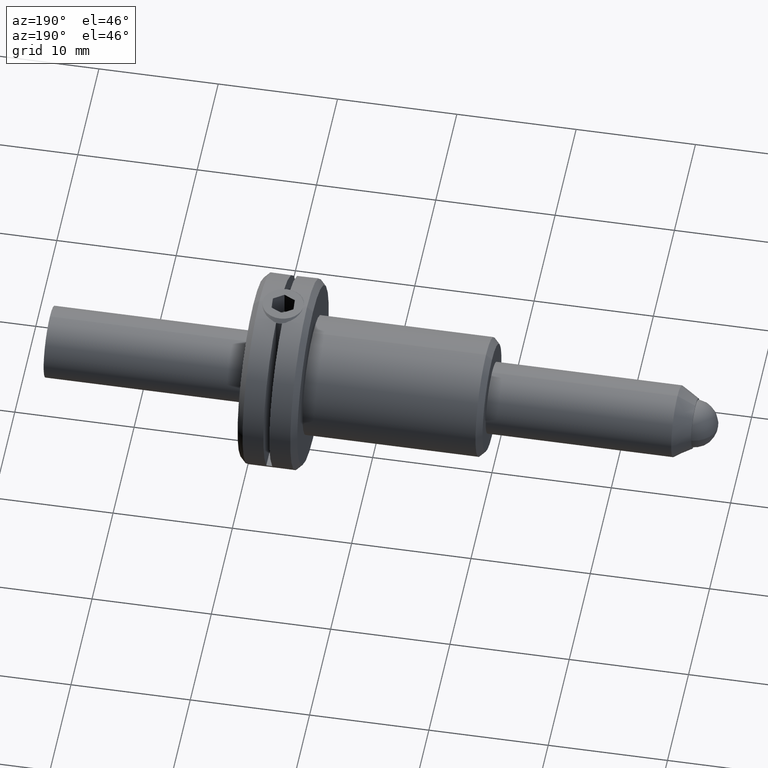
[diagram: clean part render]
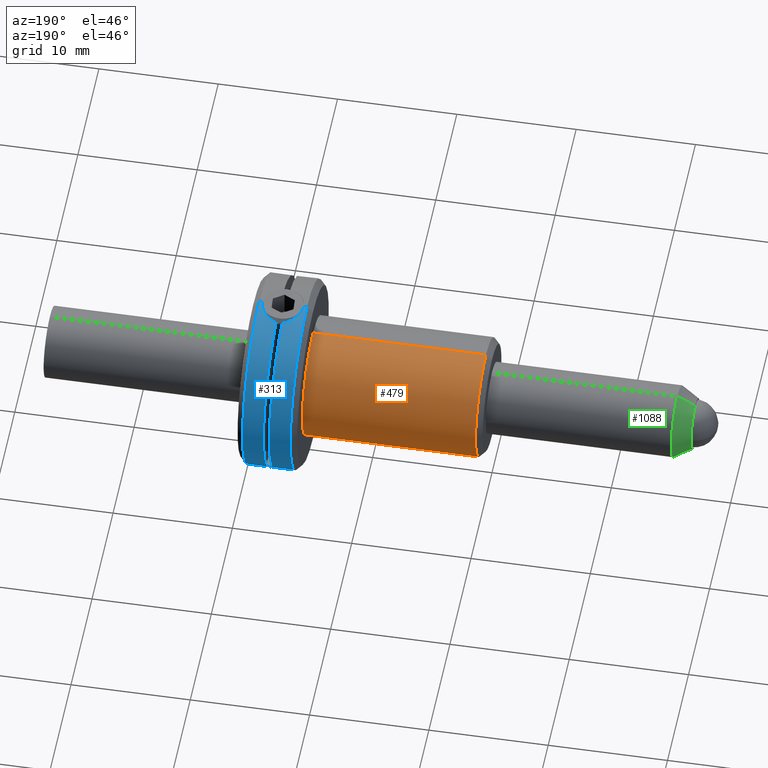
[diagram: same view with three faces highlighted in distinct colors, each labeled with its STEP entity id]
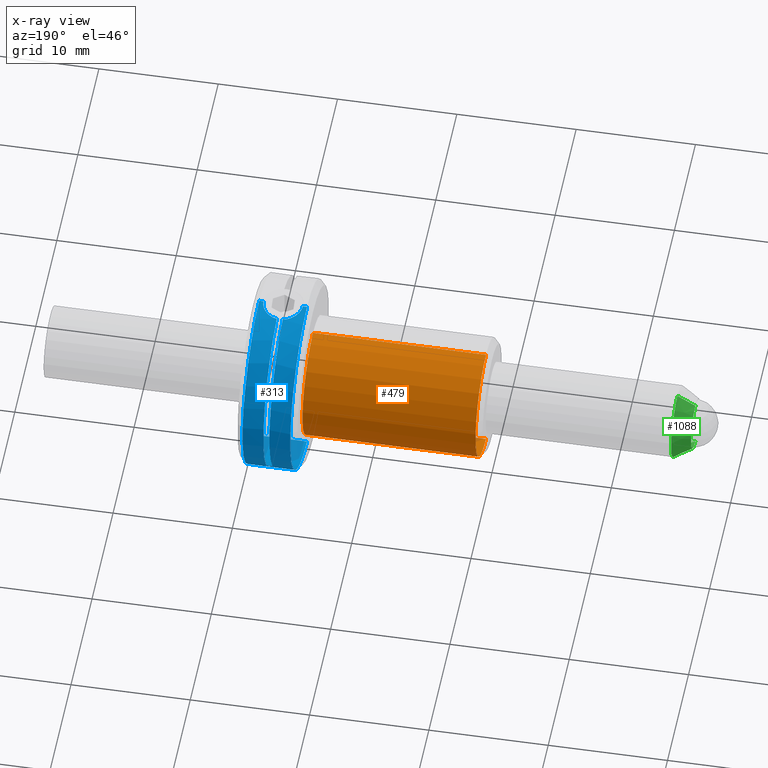
[diagram: x-ray of the same camera — body ghosted, the three highlighted faces saturated]
A machine part, auxiliary view with three faces highlighted in distinct colors.
The next image is the same camera in x-ray (body ghosted, the three faces saturated) — at least one of them is partly hidden behind the body in this view.
Their STEP definitions:

[orange] entity #479 — the highlighted cylindrical surface (partial cylindrical patch) has radius 5 mm, axis along (-1, 0, 0).
#32 = VECTOR ( 'NONE', #92, 1000.000000000000000 ) ;
#81 = CARTESIAN_POINT ( 'NONE',  ( -27.35644179797201048, 0.000000000000000000, -4.999999999999999112 ) ) ;
#92 = DIRECTION ( 'NONE',  ( -1.000000000000000000, 0.000000000000000000, 0.000000000000000000 ) ) ;
#97 = DIRECTION ( 'NONE',  ( 0.000000000000000000, 0.000000000000000000, -1.000000000000000000 ) ) ;
#174 = AXIS2_PLACEMENT_3D ( 'NONE', #1702, #811, #239 ) ;
#208 = CARTESIAN_POINT ( 'NONE',  ( -27.35644179797201048, 0.000000000000000000, 0.000000000000000000 ) ) ;
#237 = VECTOR ( 'NONE', #964, 1000.000000000000000 ) ;
#239 = DIRECTION ( 'NONE',  ( 0.000000000000000000, 0.000000000000000000, 1.000000000000000000 ) ) ;
#278 = ORIENTED_EDGE ( 'NONE', *, *, #1119, .T. ) ;
#284 = DIRECTION ( 'NONE',  ( -1.000000000000000000, 0.000000000000000000, 0.000000000000000000 ) ) ;
#300 = VERTEX_POINT ( 'NONE', #1191 ) ;
#359 = AXIS2_PLACEMENT_3D ( 'NONE', #208, #1420, #97 ) ;
#412 = ORIENTED_EDGE ( 'NONE', *, *, #863, .T. ) ;
#479 = ADVANCED_FACE ( 'NONE', ( #970 ), #1716, .T. ) ;
#603 = EDGE_LOOP ( 'NONE', ( #1023, #412, #278, #1477 ) ) ;
#609 = CARTESIAN_POINT ( 'NONE',  ( 5.000000000000004441, 0.000000000000000000, 0.000000000000000000 ) ) ;
#661 = CARTESIAN_POINT ( 'NONE',  ( -27.35644179797201048, -6.123233995736765296E-16, 4.999999999999999112 ) ) ;
#811 = DIRECTION ( 'NONE',  ( 1.000000000000000000, 0.000000000000000000, 0.000000000000000000 ) ) ;
#820 = LINE ( 'NONE', #661, #32 ) ;
#863 = EDGE_CURVE ( 'NONE', #1634, #300, #1539, .T. ) ;
#964 = DIRECTION ( 'NONE',  ( -1.000000000000000000, 0.000000000000000000, 0.000000000000000000 ) ) ;
#970 = FACE_OUTER_BOUND ( 'NONE', #603, .T. ) ;
#1023 = ORIENTED_EDGE ( 'NONE', *, *, #1882, .F. ) ;
#1084 = EDGE_CURVE ( 'NONE', #1207, #1460, #1500, .T. ) ;
#1112 = CARTESIAN_POINT ( 'NONE',  ( -9.499999999999998224, 0.000000000000000000, -4.999999999999999112 ) ) ;
#1119 = EDGE_CURVE ( 'NONE', #300, #1207, #1846, .T. ) ;
#1191 = CARTESIAN_POINT ( 'NONE',  ( 5.000000000000004441, 0.000000000000000000, -5.000000000000000000 ) ) ;
#1207 = VERTEX_POINT ( 'NONE', #1112 ) ;
#1288 = DIRECTION ( 'NONE',  ( 0.000000000000000000, 0.000000000000000000, -1.000000000000000000 ) ) ;
#1420 = DIRECTION ( 'NONE',  ( -1.000000000000000000, 0.000000000000000000, 0.000000000000000000 ) ) ;
#1460 = VERTEX_POINT ( 'NONE', #1891 ) ;
#1477 = ORIENTED_EDGE ( 'NONE', *, *, #1084, .T. ) ;
#1500 = CIRCLE ( 'NONE', #174, 4.999999999999999112 ) ;
#1539 = CIRCLE ( 'NONE', #1567, 5.000000000000000000 ) ;
#1567 = AXIS2_PLACEMENT_3D ( 'NONE', #609, #284, #1288 ) ;
#1634 = VERTEX_POINT ( 'NONE', #1802 ) ;
#1702 = CARTESIAN_POINT ( 'NONE',  ( -9.499999999999998224, 0.000000000000000000, 0.000000000000000000 ) ) ;
#1716 = CYLINDRICAL_SURFACE ( 'NONE', #359, 4.999999999999999112 ) ;
#1802 = CARTESIAN_POINT ( 'NONE',  ( 5.000000000000004441, -6.123233995736766282E-16, 5.000000000000000000 ) ) ;
#1846 = LINE ( 'NONE', #81, #237 ) ;
#1882 = EDGE_CURVE ( 'NONE', #1634, #1460, #820, .T. ) ;
#1891 = CARTESIAN_POINT ( 'NONE',  ( -9.499999999999998224, -6.123233995736765296E-16, 4.999999999999999112 ) ) ;

[blue] entity #313 — the highlighted cylindrical surface (partial cylindrical patch) has radius 8 mm, axis along (-1, 0, 0).
#48 = CARTESIAN_POINT ( 'NONE',  ( 6.311515751002518826, 1.148668007518377721, 7.917454812073199122 ) ) ;
#49 = CARTESIAN_POINT ( 'NONE',  ( 7.750000000000000000, 6.614378277661476346, -4.500000000000000888 ) ) ;
#56 = VERTEX_POINT ( 'NONE', #402 ) ;
#65 = CARTESIAN_POINT ( 'NONE',  ( 9.150000000000000355, -9.797174393178825657E-16, 8.000000000000000000 ) ) ;
#69 = DIRECTION ( 'NONE',  ( 1.000000000000000000, 0.000000000000000000, 0.000000000000000000 ) ) ;
#70 = CARTESIAN_POINT ( 'NONE',  ( 7.249999999999997335, 1.630950643030010472, 7.831985699680511281 ) ) ;
#103 = CARTESIAN_POINT ( 'NONE',  ( 8.386270206046193110, 1.395180310099567222, 7.877549552829115065 ) ) ;
#123 = CARTESIAN_POINT ( 'NONE',  ( 9.150000000000002132, 0.1975202131461036570, 8.000000000000000000 ) ) ;
#130 = DIRECTION ( 'NONE',  ( -1.084202172485504434E-16, 0.000000000000000000, 1.000000000000000000 ) ) ;
#148 = B_SPLINE_CURVE_WITH_KNOTS ( 'NONE', 3,
 ( #1499, #808, #1793, #176, #922, #1515, #636, #1365, #48, #1217, #1810, #1197, #452, #601, #442, #163 ),
 .UNSPECIFIED., .F., .F.,
 ( 4, 2, 2, 2, 2, 2, 2, 4 ),
 ( 0.002835874755387478210, 0.003127960128604552730, 0.003420045501821627251, 0.003712130875038701337, 0.004004216248255775858, 0.004296301621472850378, 0.004588386994689924898, 0.005172557741124073939 ),
 .UNSPECIFIED. ) ;
#159 = DIRECTION ( 'NONE',  ( -1.000000000000000000, -0.000000000000000000, 1.040834085586084257E-16 ) ) ;
#163 = CARTESIAN_POINT ( 'NONE',  ( 5.849999999999999645, -9.797177280130657527E-16, 8.000000000000000000 ) ) ;
#165 = DIRECTION ( 'NONE',  ( -1.000000000000000000, 0.000000000000000000, 0.000000000000000000 ) ) ;
#173 = ORIENTED_EDGE ( 'NONE', *, *, #351, .T. ) ;
#176 = CARTESIAN_POINT ( 'NONE',  ( 6.874302747824478921, 1.529863656619127044, 7.852423049668634469 ) ) ;
#178 = AXIS2_PLACEMENT_3D ( 'NONE', #1387, #69, #466 ) ;
#199 = VERTEX_POINT ( 'NONE', #1293 ) ;
#245 = CARTESIAN_POINT ( 'NONE',  ( 9.150000000000000355, -9.797174393178825657E-16, 8.000000000000000000 ) ) ;
#253 = CARTESIAN_POINT ( 'NONE',  ( 8.687748513388987348, 1.149467179595533795, 7.917341869961020961 ) ) ;
#274 = VERTEX_POINT ( 'NONE', #560 ) ;
#283 = ORIENTED_EDGE ( 'NONE', *, *, #1525, .T. ) ;
#287 = CARTESIAN_POINT ( 'NONE',  ( -27.35644179797201048, 0.000000000000000000, -8.000000000000000000 ) ) ;
#305 = EDGE_LOOP ( 'NONE', ( #1613, #283, #1483, #1169, #642, #541, #173, #629, #377, #1002 ) ) ;
#313 = ADVANCED_FACE ( 'NONE', ( #335 ), #1204, .T. ) ;
#328 = VECTOR ( 'NONE', #410, 1000.000000000000000 ) ;
#329 = AXIS2_PLACEMENT_3D ( 'NONE', #478, #159, #1080 ) ;
#335 = FACE_OUTER_BOUND ( 'NONE', #305, .T. ) ;
#351 = EDGE_CURVE ( 'NONE', #787, #1287, #1161, .T. ) ;
#377 = ORIENTED_EDGE ( 'NONE', *, *, #895, .T. ) ;
#395 = VERTEX_POINT ( 'NONE', #1349 ) ;
#402 = CARTESIAN_POINT ( 'NONE',  ( 5.500000000000005329, 0.000000000000000000, -8.000000000000000000 ) ) ;
#410 = DIRECTION ( 'NONE',  ( -1.000000000000000000, 0.000000000000000000, 0.000000000000000000 ) ) ;
#428 = DIRECTION ( 'NONE',  ( 1.000000000000000000, 0.000000000000000000, 1.040834085586084257E-16 ) ) ;
#437 = DIRECTION ( 'NONE',  ( 1.000000000000000000, -0.000000000000000000, -0.000000000000000000 ) ) ;
#442 = CARTESIAN_POINT ( 'NONE',  ( 5.850000000000000533, 0.1948791552277833183, 8.000000000000000000 ) ) ;
#452 = CARTESIAN_POINT ( 'NONE',  ( 5.986906842086524350, 0.6652157703864260974, 7.972819368972082543 ) ) ;
#466 = DIRECTION ( 'NONE',  ( 0.000000000000000000, 0.000000000000000000, 1.000000000000000000 ) ) ;
#478 = CARTESIAN_POINT ( 'NONE',  ( 7.249999999999999112, 0.000000000000000000, 0.000000000000000000 ) ) ;
#486 = CIRCLE ( 'NONE', #1289, 8.000000000000000000 ) ;
#496 = VERTEX_POINT ( 'NONE', #1544 ) ;
#513 = VECTOR ( 'NONE', #1619, 1000.000000000000000 ) ;
#541 = ORIENTED_EDGE ( 'NONE', *, *, #1722, .F. ) ;
#544 = CARTESIAN_POINT ( 'NONE',  ( 7.943019352007904210, 1.592390864367204451, 7.839982604953931400 ) ) ;
#560 = CARTESIAN_POINT ( 'NONE',  ( 7.750000000000000000, 1.630950643030008917, 7.831985699680509505 ) ) ;
#561 = CARTESIAN_POINT ( 'NONE',  ( -27.35644179797201048, -9.797174393178825657E-16, 8.000000000000000000 ) ) ;
#570 = LINE ( 'NONE', #561, #328 ) ;
#601 = CARTESIAN_POINT ( 'NONE',  ( 5.885381863884660447, 0.3916120239585191842, 7.992501665210952844 ) ) ;
#604 = LINE ( 'NONE', #1901, #830 ) ;
#629 = ORIENTED_EDGE ( 'NONE', *, *, #1571, .T. ) ;
#636 = CARTESIAN_POINT ( 'NONE',  ( 6.533099981453266203, 1.340543924859564751, 7.887129590209505992 ) ) ;
#642 = ORIENTED_EDGE ( 'NONE', *, *, #1049, .F. ) ;
#701 = CARTESIAN_POINT ( 'NONE',  ( 8.468055333128232220, 1.339692283324674271, 7.887273494992031786 ) ) ;
#714 = CARTESIAN_POINT ( 'NONE',  ( 8.878550300574779897, 0.9274612557324274364, 7.947460220116603580 ) ) ;
#715 = VERTEX_POINT ( 'NONE', #49 ) ;
#787 = VERTEX_POINT ( 'NONE', #70 ) ;
#791 = DIRECTION ( 'NONE',  ( 0.000000000000000000, 0.000000000000000000, -1.000000000000000000 ) ) ;
#808 = CARTESIAN_POINT ( 'NONE',  ( 7.153069607854820156, 1.616092683876030334, 7.835079755130237800 ) ) ;
#830 = VECTOR ( 'NONE', #437, 1000.000000000000000 ) ;
#840 = CARTESIAN_POINT ( 'NONE',  ( 9.115154137422800673, 0.3902963780664306381, 7.992604497324463431 ) ) ;
#848 = CARTESIAN_POINT ( 'NONE',  ( 7.750000000000000000, 1.630950643030008917, 7.831985699680509505 ) ) ;
#895 = EDGE_CURVE ( 'NONE', #715, #274, #1229, .T. ) ;
#907 = DIRECTION ( 'NONE',  ( -1.000000000000000000, 0.000000000000000000, 0.000000000000000000 ) ) ;
#922 = CARTESIAN_POINT ( 'NONE',  ( 6.783735348336710658, 1.489618741805397439, 7.860238702376334707 ) ) ;
#933 = LINE ( 'NONE', #1371, #1758 ) ;
#990 = CARTESIAN_POINT ( 'NONE',  ( 7.846547942710883738, 1.616151307574414497, 7.835067547196997495 ) ) ;
#1002 = ORIENTED_EDGE ( 'NONE', *, *, #1402, .F. ) ;
#1029 = CARTESIAN_POINT ( 'NONE',  ( 7.250000000000000888, 6.614378277661474570, -4.500000000000000888 ) ) ;
#1049 = EDGE_CURVE ( 'NONE', #395, #496, #933, .T. ) ;
#1061 = VERTEX_POINT ( 'NONE', #65 ) ;
#1080 = DIRECTION ( 'NONE',  ( -1.084202172485504434E-16, 0.000000000000000000, -1.000000000000000000 ) ) ;
#1161 = CIRCLE ( 'NONE', #329, 8.000000000000000000 ) ;
#1169 = ORIENTED_EDGE ( 'NONE', *, *, #1689, .T. ) ;
#1197 = CARTESIAN_POINT ( 'NONE',  ( 6.029468212116787740, 0.7546750653301830258, 7.964771715704664246 ) ) ;
#1204 = CYLINDRICAL_SURFACE ( 'NONE', #1254, 8.000000000000000000 ) ;
#1210 = EDGE_CURVE ( 'NONE', #199, #1061, #570, .T. ) ;
#1217 = CARTESIAN_POINT ( 'NONE',  ( 6.184962371079916643, 1.001303668292289117, 7.937437864738326354 ) ) ;
#1221 = CARTESIAN_POINT ( 'NONE',  ( -27.35644179797201048, 0.000000000000000000, 0.000000000000000000 ) ) ;
#1229 = CIRCLE ( 'NONE', #1474, 8.000000000000000000 ) ;
#1254 = AXIS2_PLACEMENT_3D ( 'NONE', #1221, #1633, #791 ) ;
#1278 = CARTESIAN_POINT ( 'NONE',  ( 8.215821504139404041, 1.489833061126744296, 7.860197994003802258 ) ) ;
#1287 = VERTEX_POINT ( 'NONE', #1029 ) ;
#1289 = AXIS2_PLACEMENT_3D ( 'NONE', #1600, #165, #1309 ) ;
#1293 = CARTESIAN_POINT ( 'NONE',  ( 9.500000000000001776, -9.797174393178825657E-16, 8.000000000000000000 ) ) ;
#1308 = EDGE_CURVE ( 'NONE', #1728, #56, #1311, .T. ) ;
#1309 = DIRECTION ( 'NONE',  ( 0.000000000000000000, 0.000000000000000000, -1.000000000000000000 ) ) ;
#1311 = LINE ( 'NONE', #287, #513 ) ;
#1349 = CARTESIAN_POINT ( 'NONE',  ( 5.849999999999999645, -9.797177280130657527E-16, 8.000000000000000000 ) ) ;
#1365 = CARTESIAN_POINT ( 'NONE',  ( 6.382349324590555817, 1.217707119179472830, 7.907026024943629494 ) ) ;
#1371 = CARTESIAN_POINT ( 'NONE',  ( -27.35644179797201048, -9.797174393178825657E-16, 8.000000000000000000 ) ) ;
#1387 = CARTESIAN_POINT ( 'NONE',  ( 5.500000000000005329, 0.000000000000000000, 0.000000000000000000 ) ) ;
#1402 = EDGE_CURVE ( 'NONE', #1061, #274, #1674, .T. ) ;
#1426 = CARTESIAN_POINT ( 'NONE',  ( 8.618341358380195771, 1.217053469710361657, 7.907125865361538608 ) ) ;
#1434 = CARTESIAN_POINT ( 'NONE',  ( 8.978453089463645398, 0.7584395906208761806, 7.966104901440968611 ) ) ;
#1474 = AXIS2_PLACEMENT_3D ( 'NONE', #1790, #428, #130 ) ;
#1483 = ORIENTED_EDGE ( 'NONE', *, *, #1308, .T. ) ;
#1499 = CARTESIAN_POINT ( 'NONE',  ( 7.249999999999997335, 1.630950643030010472, 7.831985699680511281 ) ) ;
#1515 = CARTESIAN_POINT ( 'NONE',  ( 6.613348921248014101, 1.394936884489105688, 7.877592750489489148 ) ) ;
#1525 = EDGE_CURVE ( 'NONE', #199, #1728, #486, .T. ) ;
#1544 = CARTESIAN_POINT ( 'NONE',  ( 5.500000000000005329, -9.797174393178825657E-16, 8.000000000000000000 ) ) ;
#1571 = EDGE_CURVE ( 'NONE', #1287, #715, #604, .T. ) ;
#1600 = CARTESIAN_POINT ( 'NONE',  ( 9.500000000000001776, 0.000000000000000000, 0.000000000000000000 ) ) ;
#1613 = ORIENTED_EDGE ( 'NONE', *, *, #1210, .F. ) ;
#1619 = DIRECTION ( 'NONE',  ( -1.000000000000000000, 0.000000000000000000, 0.000000000000000000 ) ) ;
#1621 = CARTESIAN_POINT ( 'NONE',  ( 9.500000000000001776, 0.000000000000000000, -8.000000000000000000 ) ) ;
#1628 = CIRCLE ( 'NONE', #178, 8.000000000000000000 ) ;
#1633 = DIRECTION ( 'NONE',  ( -1.000000000000000000, 0.000000000000000000, 0.000000000000000000 ) ) ;
#1674 = B_SPLINE_CURVE_WITH_KNOTS ( 'NONE', 3,
 ( #245, #123, #840, #1434, #714, #253, #1426, #701, #103, #1278, #1864, #544, #990, #848 ),
 .UNSPECIFIED., .F., .F.,
 ( 4, 2, 2, 2, 2, 2, 4 ),
 ( 9.517179564045209185E-19, 0.0005840318241154259047, 0.001168063648230850725, 0.001460079560288561834, 0.001752095472346272727, 0.002044111384403983402, 0.002336127296461694512 ),
 .UNSPECIFIED. ) ;
#1689 = EDGE_CURVE ( 'NONE', #56, #496, #1628, .T. ) ;
#1722 = EDGE_CURVE ( 'NONE', #787, #395, #148, .T. ) ;
#1728 = VERTEX_POINT ( 'NONE', #1621 ) ;
#1758 = VECTOR ( 'NONE', #907, 1000.000000000000000 ) ;
#1790 = CARTESIAN_POINT ( 'NONE',  ( 7.750000000000000000, 0.000000000000000000, 0.000000000000000000 ) ) ;
#1793 = CARTESIAN_POINT ( 'NONE',  ( 7.058569458828396925, 1.592833618600822732, 7.839892322109172085 ) ) ;
#1810 = CARTESIAN_POINT ( 'NONE',  ( 6.128534374602755186, 0.9225400976433799638, 7.947077620469062076 ) ) ;
#1864 = CARTESIAN_POINT ( 'NONE',  ( 8.127175073062911537, 1.529256760293106421, 7.852541605875018149 ) ) ;
#1901 = CARTESIAN_POINT ( 'NONE',  ( -27.35644179797201048, 6.614378277661476346, -4.500000000000000888 ) ) ;

[green] entity #1088 — the highlighted conical surface has half-angle 30.964 deg.
#100 = CARTESIAN_POINT ( 'NONE',  ( -25.55000000000000071, 0.000000000000000000, 0.000000000000000000 ) ) ;
#182 = VERTEX_POINT ( 'NONE', #1774 ) ;
#190 = CARTESIAN_POINT ( 'NONE',  ( -27.05000000000000071, 3.122849337825750912E-16, 2.100000000000000089 ) ) ;
#231 = VERTEX_POINT ( 'NONE', #1739 ) ;
#243 = DIRECTION ( 'NONE',  ( -1.000000000000000000, -0.000000000000000000, -0.000000000000000000 ) ) ;
#258 = DIRECTION ( 'NONE',  ( 1.000000000000000000, 0.000000000000000000, 0.000000000000000000 ) ) ;
#297 = VECTOR ( 'NONE', #1874, 1000.000000000000227 ) ;
#301 = VECTOR ( 'NONE', #414, 1000.000000000000227 ) ;
#317 = ORIENTED_EDGE ( 'NONE', *, *, #866, .F. ) ;
#406 = CARTESIAN_POINT ( 'NONE',  ( -25.55000000000000071, 3.673940397442059868E-16, 3.000000000000000000 ) ) ;
#414 = DIRECTION ( 'NONE',  ( 0.8574929257125444293, 0.000000000000000000, -0.5144957554275260136 ) ) ;
#463 = CARTESIAN_POINT ( 'NONE',  ( -25.55000000000000071, 0.000000000000000000, -3.000000000000000000 ) ) ;
#556 = ORIENTED_EDGE ( 'NONE', *, *, #1356, .T. ) ;
#644 = DIRECTION ( 'NONE',  ( -1.000000000000000000, -0.000000000000000000, -0.000000000000000000 ) ) ;
#679 = DIRECTION ( 'NONE',  ( 0.000000000000000000, 0.000000000000000000, 1.000000000000000000 ) ) ;
#720 = EDGE_LOOP ( 'NONE', ( #1494, #556, #1355, #317 ) ) ;
#806 = CARTESIAN_POINT ( 'NONE',  ( -27.05000000000000071, 0.000000000000000000, 0.000000000000000000 ) ) ;
#839 = CARTESIAN_POINT ( 'NONE',  ( -25.55000000000000071, 0.000000000000000000, 0.000000000000000000 ) ) ;
#864 = CIRCLE ( 'NONE', #1384, 2.100000000000000089 ) ;
#866 = EDGE_CURVE ( 'NONE', #182, #231, #988, .T. ) ;
#939 = EDGE_CURVE ( 'NONE', #1862, #231, #1417, .T. ) ;
#988 = LINE ( 'NONE', #463, #301 ) ;
#1026 = VERTEX_POINT ( 'NONE', #190 ) ;
#1044 = AXIS2_PLACEMENT_3D ( 'NONE', #839, #243, #1425 ) ;
#1088 = ADVANCED_FACE ( 'NONE', ( #1575 ), #1160, .T. ) ;
#1160 = CONICAL_SURFACE ( 'NONE', #1595, 3.000000000000000000, 0.5404195002705834971 ) ;
#1355 = ORIENTED_EDGE ( 'NONE', *, *, #939, .T. ) ;
#1356 = EDGE_CURVE ( 'NONE', #1026, #1862, #1552, .T. ) ;
#1384 = AXIS2_PLACEMENT_3D ( 'NONE', #806, #644, #679 ) ;
#1417 = CIRCLE ( 'NONE', #1044, 3.000000000000000000 ) ;
#1422 = DIRECTION ( 'NONE',  ( 0.000000000000000000, 0.000000000000000000, -1.000000000000000000 ) ) ;
#1425 = DIRECTION ( 'NONE',  ( 0.000000000000000000, 0.000000000000000000, 1.000000000000000000 ) ) ;
#1494 = ORIENTED_EDGE ( 'NONE', *, *, #1893, .F. ) ;
#1552 = LINE ( 'NONE', #406, #297 ) ;
#1575 = FACE_OUTER_BOUND ( 'NONE', #720, .T. ) ;
#1595 = AXIS2_PLACEMENT_3D ( 'NONE', #100, #258, #1422 ) ;
#1684 = CARTESIAN_POINT ( 'NONE',  ( -25.55000000000000071, 3.673940397442059868E-16, 3.000000000000000000 ) ) ;
#1739 = CARTESIAN_POINT ( 'NONE',  ( -25.55000000000000071, 0.000000000000000000, -3.000000000000000000 ) ) ;
#1774 = CARTESIAN_POINT ( 'NONE',  ( -27.05000000000000071, 0.000000000000000000, -2.100000000000000089 ) ) ;
#1862 = VERTEX_POINT ( 'NONE', #1684 ) ;
#1874 = DIRECTION ( 'NONE',  ( 0.8574929257125444293, 6.300755800592192280E-17, 0.5144957554275260136 ) ) ;
#1893 = EDGE_CURVE ( 'NONE', #1026, #182, #864, .T. ) ;